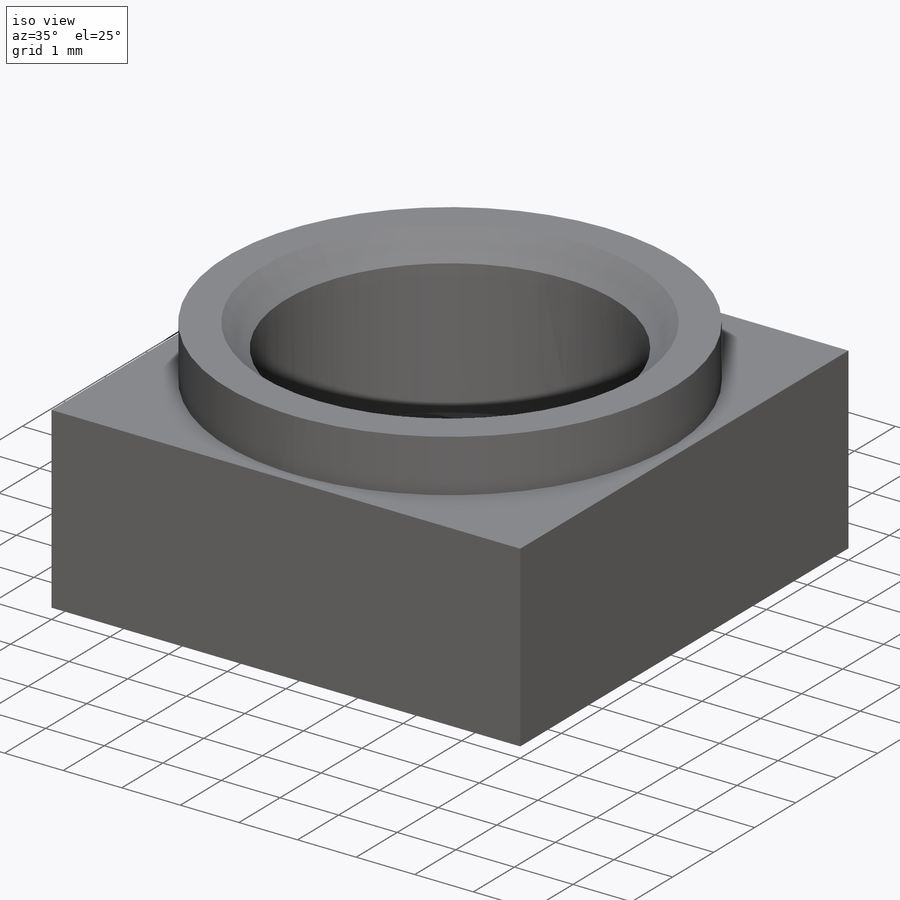
[diagram: iso view]
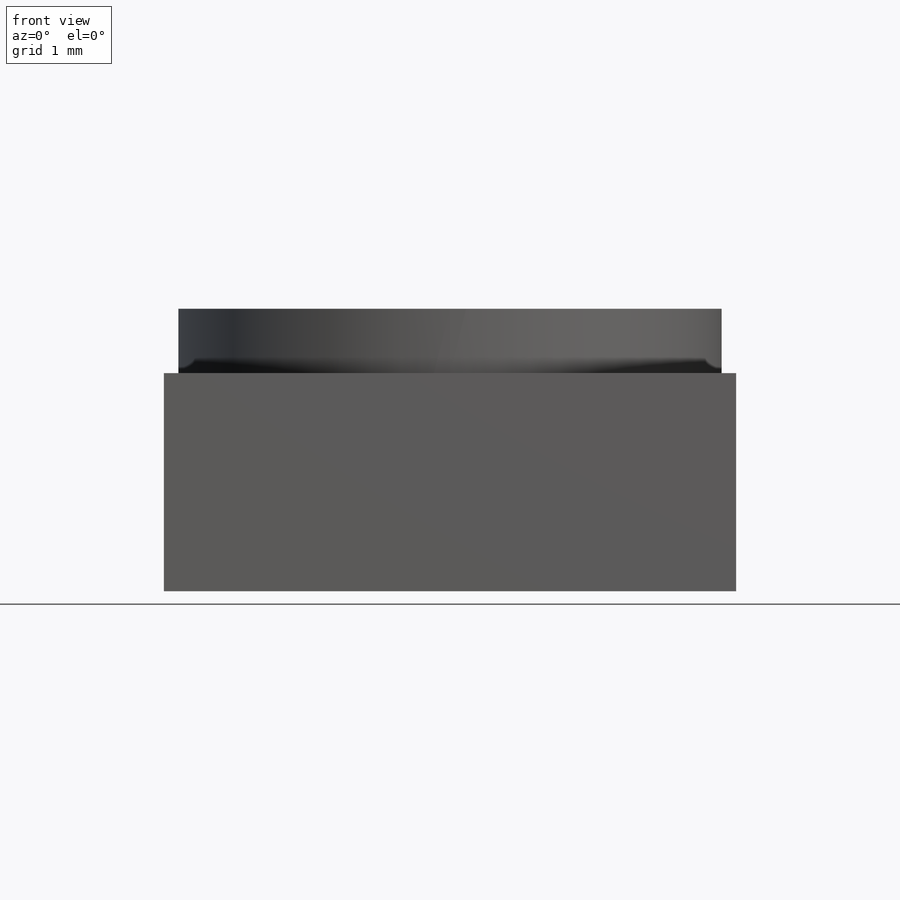
[diagram: front view]
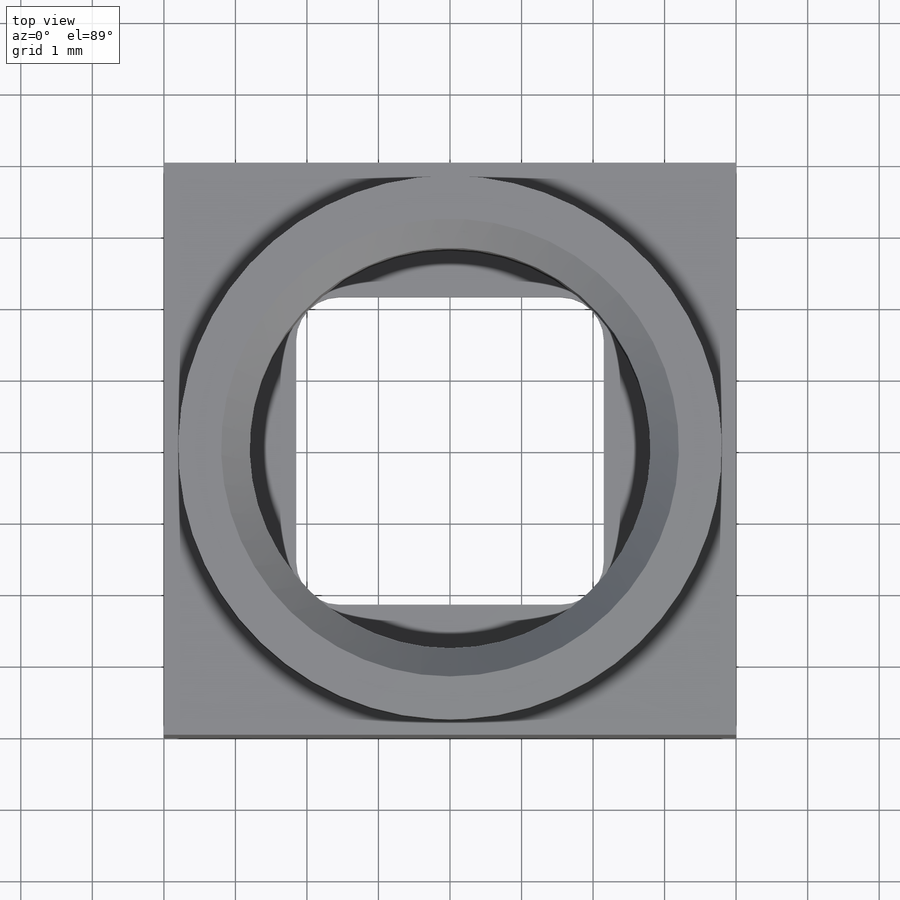
[diagram: top view]
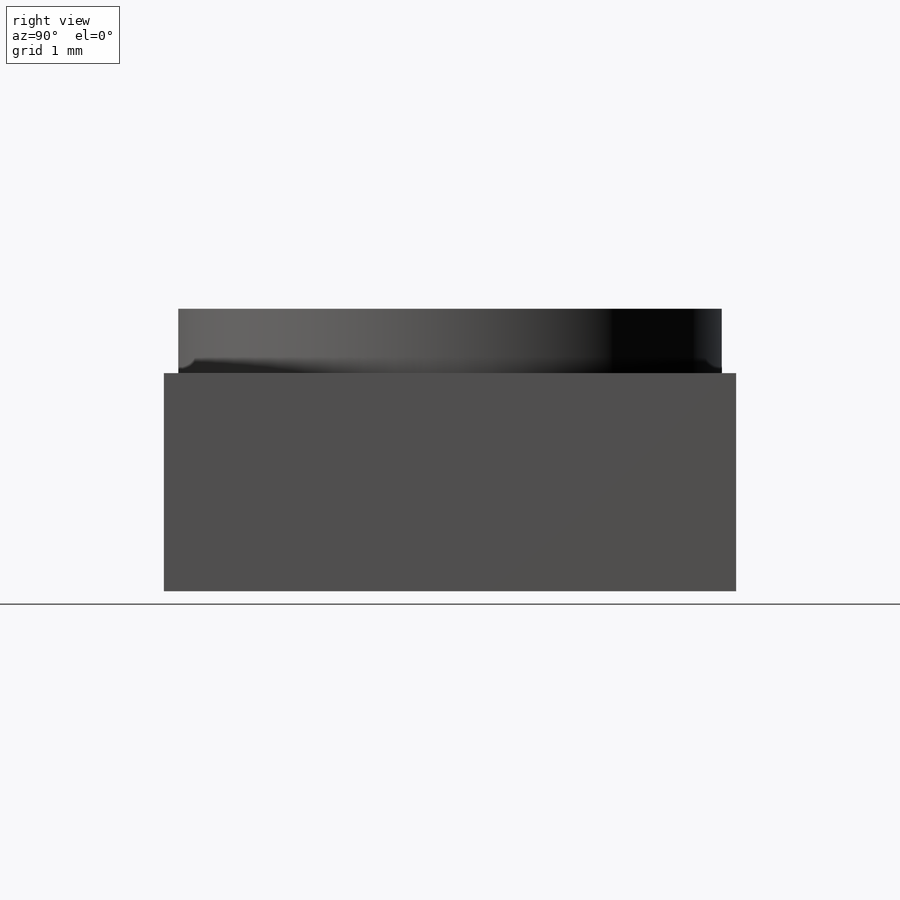
[diagram: right view]
SOLIDWORKS PART (.sldprt)
format: sldprt  version: not decoded by parser v0  size: 342,016 bytes
history: native  units: mm
features: sketch x6, extrude x5, plane x3, material x1, thread x1, chamfer x1 (+10 scaffold rows collapsed)
feature tree (27):
  scaffold x10  (default folders/planes/origin — collapsed)
  material  "ABS PC"
  plane  "Vorne"
  plane  "Oben"
  plane  "Rechts"
  sketch  "downside"  dims[c1.D1=~229.822702mm c1.D2=~305.142747mm c2.D1=8.0mm]
  sketch  "Skizze2"  dims[D1=0.3mm]
  extrude  "Aufsatz-Linear austragen1"  Depth=0.6mm
  sketch  "Skizze5"  dims[D1=~5.473758mm D2=6.4mm D3=0.1mm D4=0.0mm]
  extrude  "Aufsatz-Linear austragen3"  Depth=0.35mm
  sketch  "Skizze4"  dims[D1=~0.865561mm D2=4.3mm D3=0.0mm]
  extrude  "Aufsatz-Linear austragen2"  Depth=0.3mm
  sketch  "Skizze7"  dims[D2=5.6mm D1=0.0mm]
  extrude  "Aufsatz-Linear austragen4"  [1 undecoded]
  thread  "Gewindedarstellung1"  Diameter=2.1mm  [1 undecoded]
  sketch  "Skizze8"  dims[D1=7.6mm]
  extrude  "Aufsatz-Linear austragen5"  Depth=0.9mm
  chamfer  "Fase1"  Distance=0.4mm Angle=45deg
decode coverage: 12 of 13 modeling features carry decoded parameters
note: ~ marks probable driven/reference dimensions
note: 2 parameter values undecoded
note: suppression state not decoded; provenance and decode notes live in map.json
